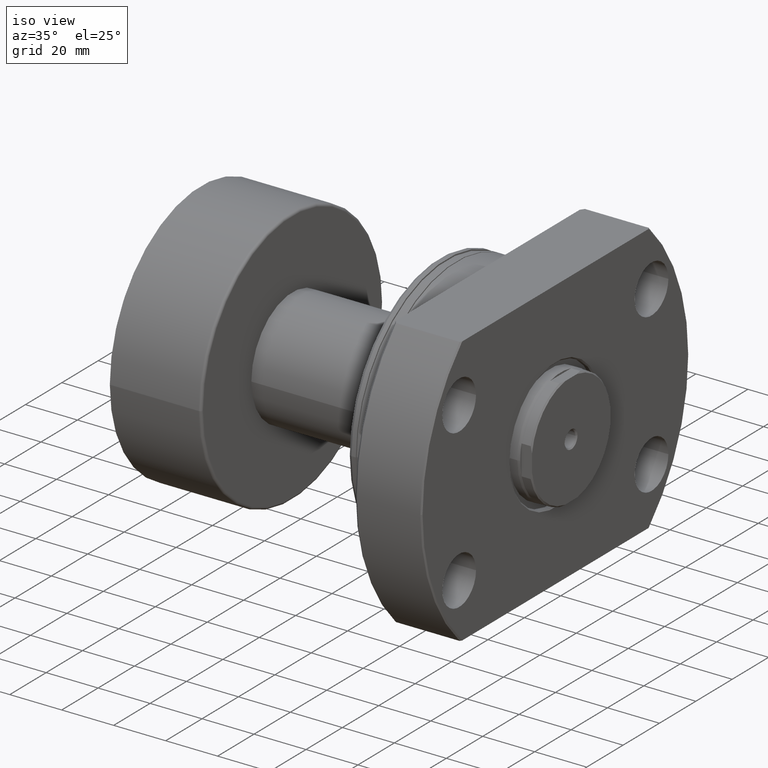
[diagram: clean part render]
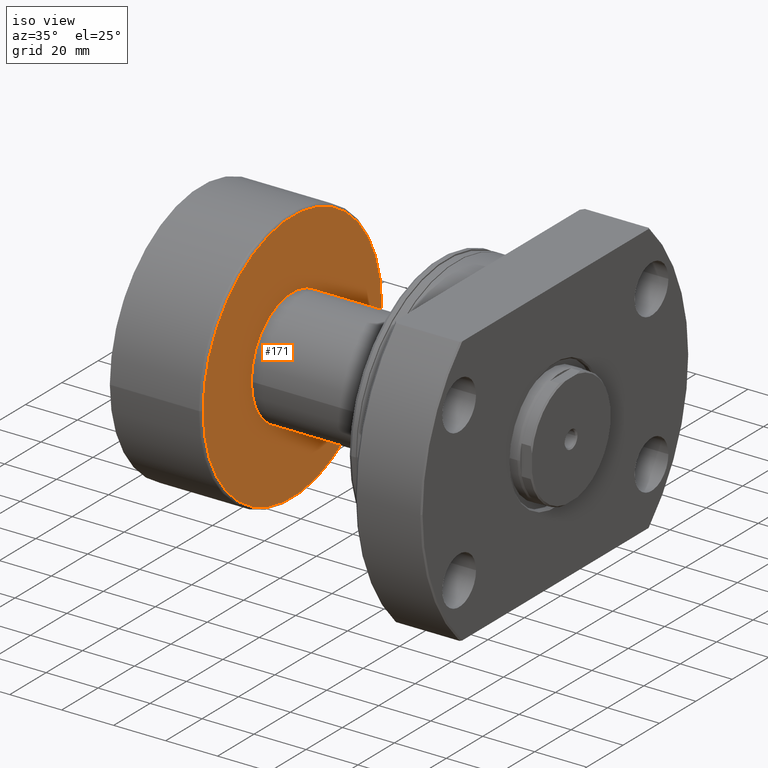
[diagram: same view with one face highlighted and labeled with its STEP entity id]
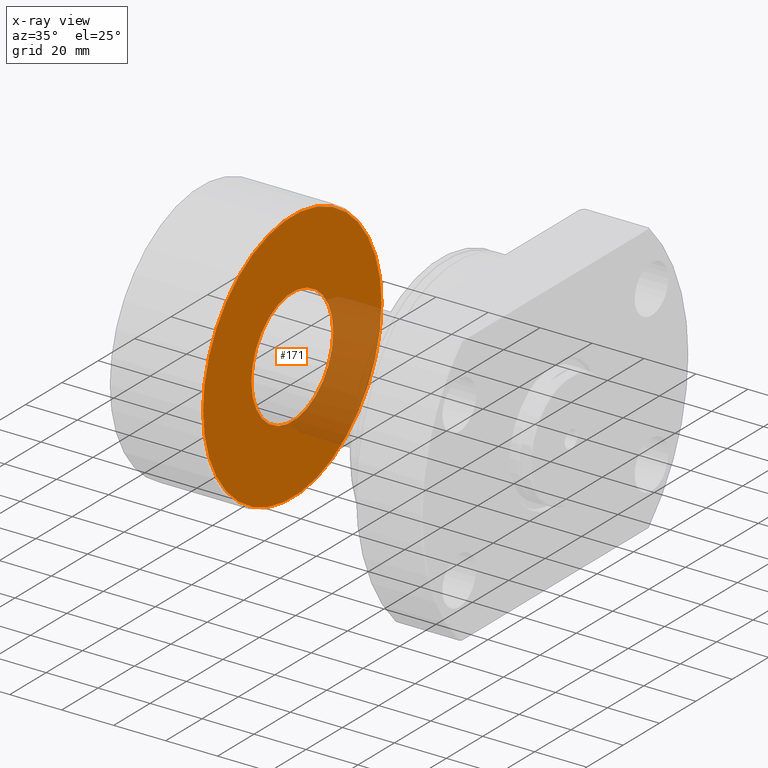
[diagram: x-ray of the same camera — body ghosted, the highlighted face saturated]
A machine part, iso view. The second image highlights one B-rep face of the part: STEP entity #171.
The next image is the same camera in x-ray: the body ghosted, the highlighted face saturated — about 22% of this face is hidden behind the body in this view.
In plain terms, the highlighted planar face has unit normal (-1, -0, 0).
Its self-contained STEP definition (entity closure, byte-faithful):
#171 = ADVANCED_FACE ( 'NONE', ( #3203, #743 ), #1722, .F. ) ;
#506 = CARTESIAN_POINT ( 'NONE',  ( 36.70000000000000284, 3.925220321993471577E-16, 0.000000000000000000 ) ) ;
#634 = DIRECTION ( 'NONE',  ( -1.000000000000000000, -1.069542322069065801E-17, -0.000000000000000000 ) ) ;
#743 = FACE_BOUND ( 'NONE', #2568, .T. ) ;
#974 = CIRCLE ( 'NONE', #2317, 22.50000000000000000 ) ;
#984 = ORIENTED_EDGE ( 'NONE', *, *, #2230, .F. ) ;
#997 = CARTESIAN_POINT ( 'NONE',  ( 36.70000000000000284, -22.50000000000000000, 0.000000000000000000 ) ) ;
#1164 = CARTESIAN_POINT ( 'NONE',  ( 36.70000000000000284, -49.00000000000000000, 0.000000000000000000 ) ) ;
#1177 = ORIENTED_EDGE ( 'NONE', *, *, #2081, .F. ) ;
#1182 = AXIS2_PLACEMENT_3D ( 'NONE', #1472, #2222, #2236 ) ;
#1298 = AXIS2_PLACEMENT_3D ( 'NONE', #3084, #1777, #2540 ) ;
#1421 = VERTEX_POINT ( 'NONE', #1164 ) ;
#1472 = CARTESIAN_POINT ( 'NONE',  ( 36.70000000000000284, -22.50000000000000000, 0.000000000000000000 ) ) ;
#1502 = DIRECTION ( 'NONE',  ( 0.000000000000000000, -1.000000000000000000, 0.000000000000000000 ) ) ;
#1591 = CARTESIAN_POINT ( 'NONE',  ( 36.70000000000000284, 22.50000000000000000, 2.755455298081550694E-15 ) ) ;
#1687 = EDGE_CURVE ( 'NONE', #2038, #2779, #2423, .T. ) ;
#1722 = PLANE ( 'NONE',  #1182 ) ;
#1724 = DIRECTION ( 'NONE',  ( 0.000000000000000000, -1.000000000000000000, 0.000000000000000000 ) ) ;
#1777 = DIRECTION ( 'NONE',  ( -1.000000000000000000, -1.069542322069065801E-17, -0.000000000000000000 ) ) ;
#1862 = CIRCLE ( 'NONE', #2694, 49.00000000000000000 ) ;
#1876 = EDGE_CURVE ( 'NONE', #2779, #2038, #974, .T. ) ;
#1901 = CARTESIAN_POINT ( 'NONE',  ( 36.70000000000000284, 49.00000000000000000, 6.062001655779398511E-15 ) ) ;
#2038 = VERTEX_POINT ( 'NONE', #997 ) ;
#2081 = EDGE_CURVE ( 'NONE', #1421, #2381, #1862, .T. ) ;
#2222 = DIRECTION ( 'NONE',  ( -1.000000000000000000, -1.069542322069065801E-17, 0.000000000000000000 ) ) ;
#2230 = EDGE_CURVE ( 'NONE', #2381, #1421, #2585, .T. ) ;
#2236 = DIRECTION ( 'NONE',  ( 1.069542322069065801E-17, -1.000000000000000000, 0.000000000000000000 ) ) ;
#2278 = ORIENTED_EDGE ( 'NONE', *, *, #1876, .T. ) ;
#2291 = DIRECTION ( 'NONE',  ( -1.000000000000000000, -1.069542322069065801E-17, -0.000000000000000000 ) ) ;
#2317 = AXIS2_PLACEMENT_3D ( 'NONE', #2792, #634, #3152 ) ;
#2381 = VERTEX_POINT ( 'NONE', #1901 ) ;
#2423 = CIRCLE ( 'NONE', #2895, 22.50000000000000000 ) ;
#2540 = DIRECTION ( 'NONE',  ( 0.000000000000000000, -1.000000000000000000, 0.000000000000000000 ) ) ;
#2568 = EDGE_LOOP ( 'NONE', ( #2670, #2278 ) ) ;
#2585 = CIRCLE ( 'NONE', #1298, 49.00000000000000000 ) ;
#2670 = ORIENTED_EDGE ( 'NONE', *, *, #1687, .T. ) ;
#2694 = AXIS2_PLACEMENT_3D ( 'NONE', #506, #2969, #1724 ) ;
#2729 = CARTESIAN_POINT ( 'NONE',  ( 36.70000000000000284, 3.925220321993471577E-16, 0.000000000000000000 ) ) ;
#2779 = VERTEX_POINT ( 'NONE', #1591 ) ;
#2792 = CARTESIAN_POINT ( 'NONE',  ( 36.70000000000000284, 3.925220321993471577E-16, 0.000000000000000000 ) ) ;
#2895 = AXIS2_PLACEMENT_3D ( 'NONE', #2729, #2291, #1502 ) ;
#2969 = DIRECTION ( 'NONE',  ( -1.000000000000000000, -1.069542322069065801E-17, -0.000000000000000000 ) ) ;
#3084 = CARTESIAN_POINT ( 'NONE',  ( 36.70000000000000284, 3.925220321993471577E-16, 0.000000000000000000 ) ) ;
#3144 = EDGE_LOOP ( 'NONE', ( #1177, #984 ) ) ;
#3152 = DIRECTION ( 'NONE',  ( 0.000000000000000000, -1.000000000000000000, 0.000000000000000000 ) ) ;
#3203 = FACE_OUTER_BOUND ( 'NONE', #3144, .T. ) ;